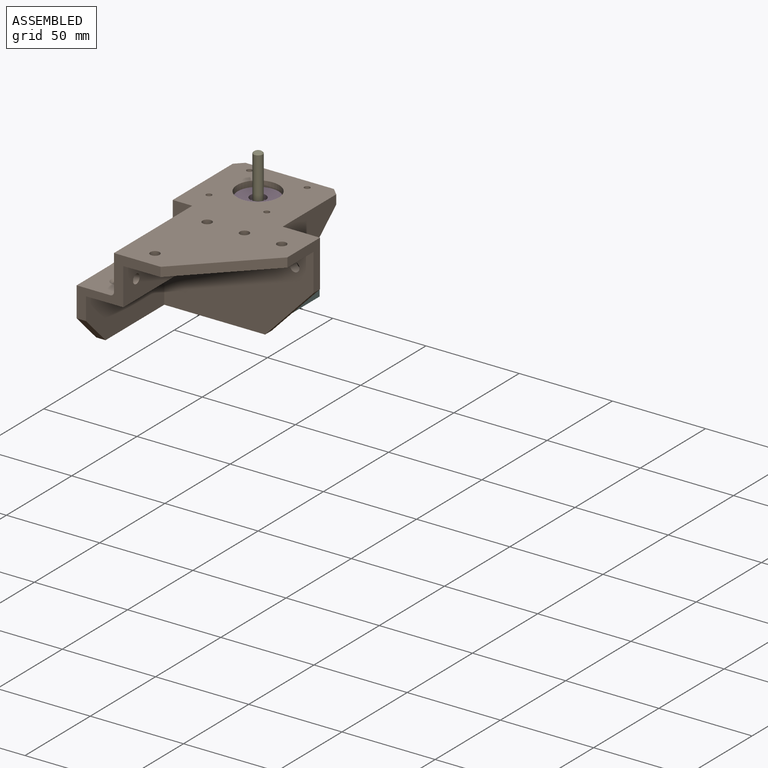
[diagram: assembled view]
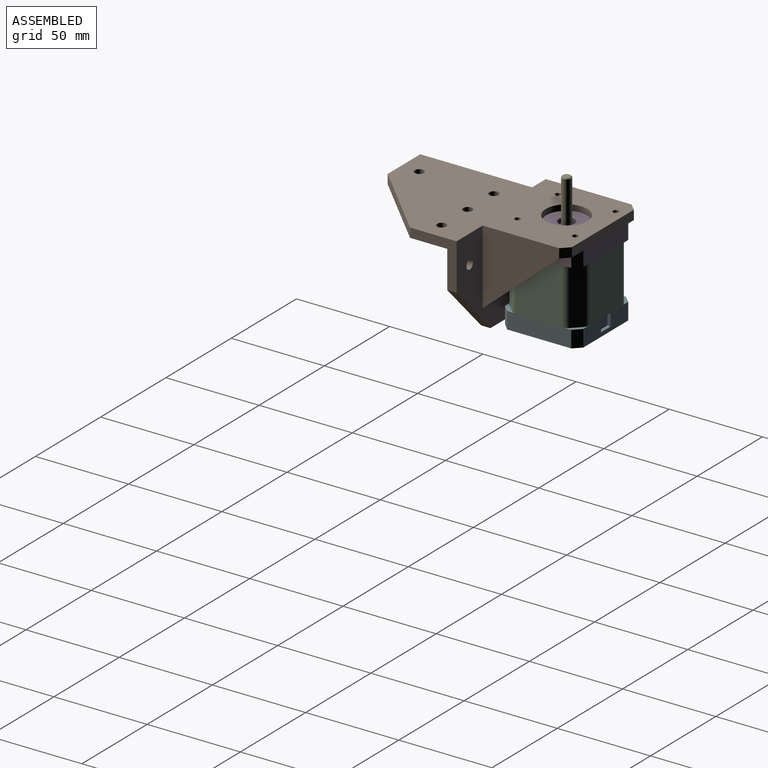
[diagram: assembled view, second angle]
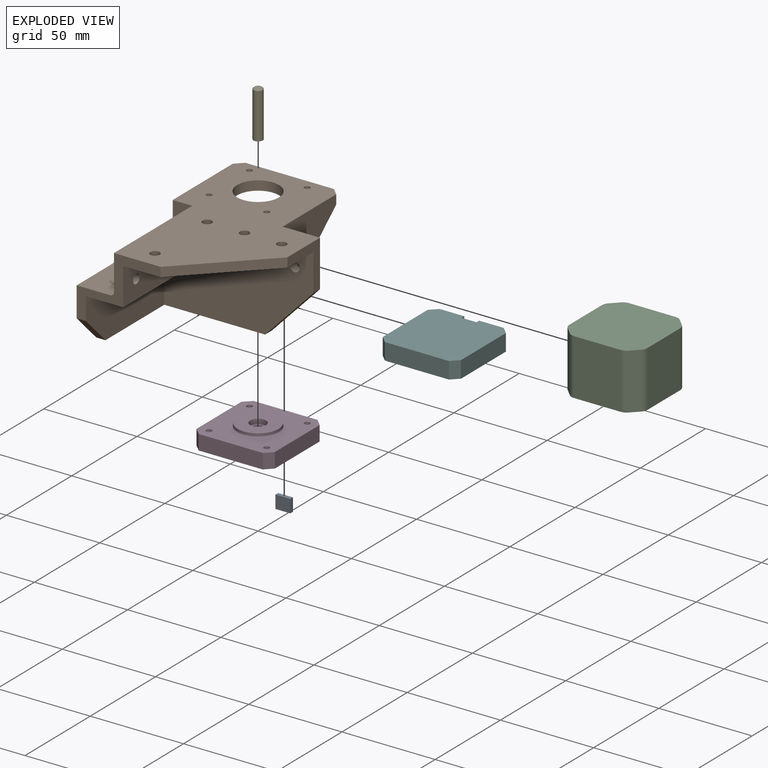
[diagram: exploded view]
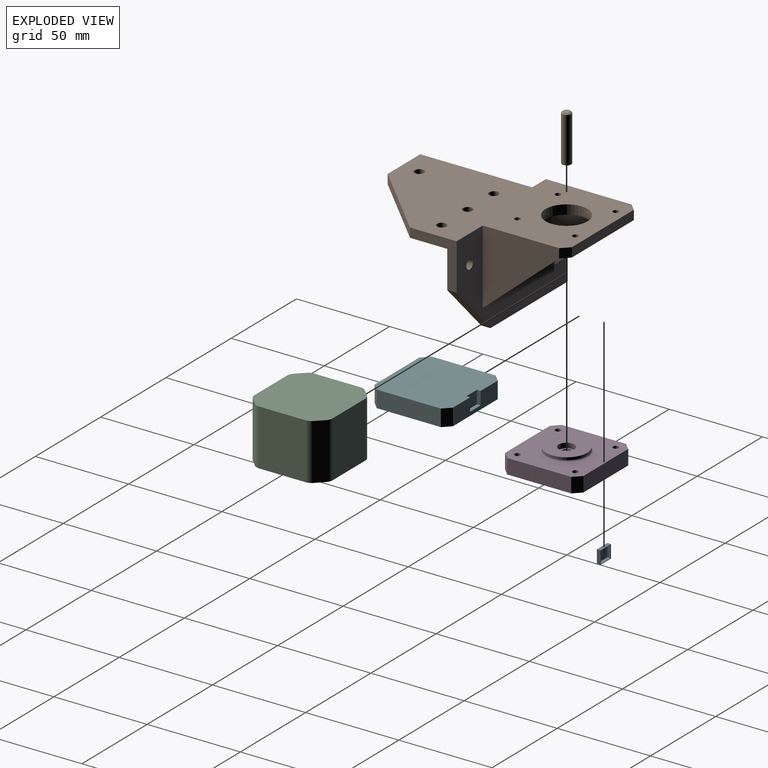
[diagram: exploded view, second angle]
ASSEMBLY  parts=6 mates=6
PART A: 11 faces, bbox 8x2x7 mm
  f0: plane 8x2mm, normal (0,0,-1), area 16mm2, adj f1,f3,f4,f9
  f1: plane 7x2mm, normal (-1,0,0), area 14mm2, adj f0,f2,f4,f9
  f2: plane 8x2mm, normal (0,0,1), area 16mm2, adj f1,f3,f4,f9
  f3: plane 7x2mm, normal (1,0,0), area 14mm2, adj f0,f2,f4,f9
  f4: plane 8x7mm, normal (0,-1,0), area 56mm2, adj f0,f1,f2,f3
  f5: plane 7.5x1.75mm, normal (0,0,-1), area 13.1mm2, adj f6,f8,f9,f10
  f6: plane 6.5x1.75mm, normal (-1,0,0), area 11.4mm2, adj f5,f7,f9,f10
  f7: plane 7.5x1.75mm, normal (0,0,1), area 13.1mm2, adj f6,f8,f9,f10
  f8: plane 6.5x1.75mm, normal (1,0,0), area 11.4mm2, adj f5,f7,f9,f10
  f9: plane 8x7mm, normal (0,1,0), area 7.3mm2, adj f0,f1,f2,f3,f5,f6,f7,f8
  f10: plane 7.5x6.5mm, normal (0,1,0), area 48.7mm2, adj f5,f6,f7,f8
PART B: 56 faces, bbox 110x85x52 mm
  f0: cylinder r=2mm len=27.5mm, axis (1,0,0), area 73.4mm2, adj f6,f39,f49,f50,f54
  f1: cylinder r=2mm len=27.5mm, axis (1,0,0), area 75.7mm2, adj f3,f5,f6,f51,f53
  f2: plane 65x31mm, normal (0,-1,0), area 1902.5mm2, adj f3,f5,f10,f24,f39,f41,f42,f52
  f3: plane 45x37mm, normal (1,0,0), area 365.9mm2, adj f1,f2,f4,f5,f6,f9,f21,f36
  f4: plane 60x27mm, normal (0,1,0), area 1507.5mm2, adj f3,f8,f10,f38,f52
  f5: plane 25.5x18mm, normal (0,0,1), area 414.8mm2, adj f1,f2,f3,f48,f51
  f6: plane 60x20.5mm, normal (0,-1,0), area 1026.3mm2, adj f0,f1,f3,f16,f21,f33,f37,f42
  f7: plane 46x40mm, normal (0,-1,0), area 980mm2, adj f21,f24,f26,f32,f37,f41
  f8: plane 80x47mm, normal (1,0,0), area 2970.8mm2, adj f4,f9,f10,f11,f15,f17,f22,f36
  f9: plane 60x20mm, normal (0,1,0), area 1160.7mm2, adj f3,f8,f16,f33,f36,f38
  f10: plane 59.08x50mm, normal (0,0,-1), area 520.4mm2, adj f2,f4,f8,f11,f24,f52
  f11: plane 27x25.92mm, normal (0,0.72,-0.69), area 187.1mm2, adj f8,f10,f17,f24
  f12: plane 55.5x45mm, normal (0,0,-1), area 1809.6mm2, adj f13,f19,f23,f24,f25,f26,f27,f28
  f13: cylinder r=1.5mm len=5mm, axis (0,0,1), area 47.1mm2, adj f12,f21
  f14: cylinder r=2.5mm len=5mm, axis (0,0,1), area 78.5mm2, adj f21,f36
  f15: cylinder r=2.5mm len=5mm, axis (1,0,0), area 78.5mm2, adj f8,f24
  f16: cylinder r=2.5mm len=5mm, axis (0,1,0), area 78.5mm2, adj f6,f9
  f17: plane 25x25mm, normal (0,1,0), area 225mm2, adj f8,f11,f21,f24,f36,f40
  f18: plane 41x40mm, normal (0,1,0), area 922.5mm2, adj f19,f21,f24,f31
  f19: plane 5x4mm, normal (-0.71,0.71,0), area 28.3mm2, adj f12,f18,f21,f30
  f20: cylinder r=2.5mm len=5mm, axis (0,0,1), area 78.5mm2, adj f21,f36
  f21: plane 110x75.5mm, normal (0,0,1), area 5454.6mm2, adj f3,f6,f7,f13,f14,f17,f18,f19
  f22: cylinder r=2.5mm len=5mm, axis (1,0,0), area 78.5mm2, adj f8,f24
  f23: cylinder r=1.5mm len=5mm, axis (0,0,1), area 47.1mm2, adj f12,f21
  f24: plane 85x52mm, normal (-1,0,0), area 3388.9mm2, adj f2,f7,f10,f11,f12,f15,f17,f18
  f25: plane 41x35mm, normal (0,1,0), area 717.5mm2, adj f12,f24,f32
  f26: plane 5x4mm, normal (-0.71,-0.71,0), area 28.3mm2, adj f7,f12,f21,f30
  f27: cylinder r=11.25mm len=22.5mm, axis (0,0,1), area 353.4mm2, adj f12,f21
  f28: plane 41x35mm, normal (0,-1,0), area 717.5mm2, adj f12,f24,f31
  f29: cylinder r=1.5mm len=5mm, axis (0,0,1), area 47.1mm2, adj f12,f21
  f30: plane 47.5x5mm, normal (-1,0,0), area 237.5mm2, adj f12,f19,f21,f26
  f31: plane 41x35mm, normal (-0.65,0,-0.76), area 161.7mm2, adj f12,f18,f24,f28
  f32: plane 41x35mm, normal (-0.65,0,-0.76), area 161.7mm2, adj f7,f12,f24,f25
  f33: cylinder r=2.5mm len=5mm, axis (0,1,0), area 78.5mm2, adj f6,f9
  f34: cylinder r=2.5mm len=5mm, axis (0,0,1), area 78.5mm2, adj f21,f36
  f35: cylinder r=1.5mm len=5mm, axis (0,0,1), area 47.1mm2, adj f12,f21
  f36: plane 60x60mm, normal (0,0,-1), area 2721.5mm2, adj f3,f8,f9,f14,f17,f20,f34,f40
  f37: plane 19x18mm, normal (1,0,0), area 227.6mm2, adj f6,f7,f21,f41,f50
  f38: plane 60x20mm, normal (0,0,-1), area 1180.8mm2, adj f3,f4,f8,f9,f45,f46
  f39: plane 23.5x18mm, normal (0,0,1), area 378.8mm2, adj f0,f2,f47,f49,f50
  f40: plane 40x40mm, normal (0.71,0.71,0), area 282.8mm2, adj f3,f17,f21,f36
  f41: plane 9.5x9.5mm, normal (0,-0.71,0.71), area 68.4mm2, adj f2,f7,f24,f37,f50
  f42: plane 20x20mm, normal (0,-0.71,0.71), area 143.8mm2, adj f2,f6,f43,f44,f49,f51
  f43: plane 18x18mm, normal (-1,0,0), area 162mm2, adj f6,f42,f49
  f44: plane 18x18mm, normal (1,0,0), area 162mm2, adj f6,f42,f51
  f45: cylinder r=1.75mm len=3.5mm, axis (0,0,1), area 22mm2, adj f38,f47
  f46: cylinder r=1.75mm len=3.5mm, axis (0,0,1), area 22mm2, adj f38,f48
  f47: cone r=1.75mm half-angle=45deg, axis (0,0,1), area 48.9mm2, adj f39,f45
  f48: cone r=1.75mm half-angle=45deg, axis (0,0,1), area 48.9mm2, adj f5,f46
  f49: cylinder r=2mm len=20mm, axis (0,-1,0), area 58.3mm2, adj f0,f39,f42,f43
  f50: cylinder r=2mm len=20mm, axis (0,-1,0), area 58.3mm2, adj f0,f37,f39,f41
  f51: cylinder r=2mm len=20mm, axis (0,1,0), area 58.3mm2, adj f1,f5,f42,f44
  f52: plane 15x15mm, normal (0.71,0,-0.71), area 106.1mm2, adj f2,f3,f4,f10
  f53: cylinder r=5.5mm len=7.55mm, axis (0,1,0), area 2.8mm2, adj f1,f6
  f54: cylinder r=5.5mm len=7.55mm, axis (0,1,0), area 2.8mm2, adj f0,f6
  f55: cylinder r=2.5mm len=5mm, axis (0,0,1), area 78.5mm2, adj f21,f36
PART C: 18 faces, bbox 42x42x30 mm
  f0: cylinder r=4.48mm len=30mm, axis (0,0,1), area 105.5mm2, adj f1,f15,f16,f17
  f1: plane 30x4.02mm, normal (0.71,-0.71,0), area 170.6mm2, adj f0,f2,f16,f17
  f2: cylinder r=4.48mm len=30mm, axis (0,0,1), area 105.5mm2, adj f1,f3,f16,f17
  f3: plane 30x25mm, normal (0,-1,0), area 750mm2, adj f2,f4,f16,f17
  f4: cylinder r=4.48mm len=30mm, axis (0,0,1), area 105.5mm2, adj f3,f5,f16,f17
  f5: plane 30x4.02mm, normal (-0.71,-0.71,0), area 170.6mm2, adj f4,f6,f16,f17
  f6: cylinder r=4.48mm len=30mm, axis (0,0,1), area 105.5mm2, adj f5,f7,f16,f17
  f7: plane 30x25mm, normal (-1,0,0), area 750mm2, adj f6,f8,f16,f17
  f8: cylinder r=4.48mm len=30mm, axis (0,0,1), area 105.5mm2, adj f7,f9,f16,f17
  f9: plane 30x4.02mm, normal (-0.71,0.71,0), area 170.6mm2, adj f8,f10,f16,f17
  f10: cylinder r=4.48mm len=30mm, axis (0,0,1), area 105.5mm2, adj f9,f11,f16,f17
  f11: plane 30x25mm, normal (0,1,0), area 750mm2, adj f10,f12,f16,f17
  f12: cylinder r=4.48mm len=30mm, axis (0,0,1), area 105.5mm2, adj f11,f13,f16,f17
  f13: plane 30x4.02mm, normal (0.71,0.71,0), area 170.6mm2, adj f12,f14,f16,f17
  f14: cylinder r=4.48mm len=30mm, axis (0,0,1), area 105.5mm2, adj f13,f15,f16,f17
  f15: plane 30x25mm, normal (1,0,0), area 750mm2, adj f0,f14,f16,f17
  f16: plane 42x42mm, normal (0,0,-1), area 1672.2mm2, adj f0,f1,f2,f3,f4,f5,f6,f7
  f17: plane 42x42mm, normal (0,0,1), area 1672.2mm2, adj f0,f1,f2,f3,f4,f5,f6,f7
PART D: 27 faces, bbox 42x42x10 mm
  f0: torus R=11.75mm, axis (0,0,-1), area 83.4mm2, adj f4,f18
  f1: cylinder r=2.75mm len=5.5mm, axis (0,0,-1), area 8.6mm2, adj f25,f26
  f2: cylinder r=4mm len=8mm, axis (0,0,-1), area 12.6mm2, adj f24,f25
  f3: cylinder r=4.25mm len=8.5mm, axis (0,0,1), area 80.1mm2, adj f23,f24
  f4: cylinder r=11mm len=22mm, axis (0,0,-1), area 86.4mm2, adj f0,f23
  f5: cylinder r=1.5mm len=4.5mm, axis (0,0,1), area 42.4mm2, adj f18,f22
  f6: cylinder r=1.5mm len=4.5mm, axis (0,0,1), area 42.4mm2, adj f18,f21
  f7: cylinder r=1.5mm len=4.5mm, axis (0,0,1), area 42.4mm2, adj f18,f20
  f8: cylinder r=1.5mm len=4.5mm, axis (0,0,1), area 42.4mm2, adj f18,f19
  f9: plane 8x3.82mm, normal (0.71,0.71,0), area 43.2mm2, adj f10,f16,f17,f18
  f10: plane 34.37x8mm, normal (1,0,0), area 274.9mm2, adj f9,f11,f17,f18
  f11: plane 8x3.82mm, normal (0.71,-0.71,0), area 43.2mm2, adj f10,f12,f17,f18
  f12: plane 34.37x8mm, normal (0,-1,0), area 274.9mm2, adj f11,f13,f17,f18
  f13: plane 8x3.82mm, normal (-0.71,-0.71,0), area 43.2mm2, adj f12,f14,f17,f18
  f14: plane 34.37x8mm, normal (-1,0,0), area 274.9mm2, adj f13,f15,f17,f18
  f15: plane 8x3.82mm, normal (-0.71,0.71,0), area 43.2mm2, adj f14,f16,f17,f18
  f16: plane 34.37x8mm, normal (0,1,0), area 274.9mm2, adj f9,f15,f17,f18
  f17: plane 42x42mm, normal (0,0,-1), area 1734.9mm2, adj f9,f10,f11,f12,f13,f14,f15,f16
  f18: plane 42x42mm, normal (0,0,1), area 1272.9mm2, adj f0,f5,f6,f7,f8,f9,f10,f11
  f19: plane 3x3mm, normal (0,0,1), area 7.1mm2, adj f8
  f20: plane 3x3mm, normal (0,0,1), area 7.1mm2, adj f7
  f21: plane 3x3mm, normal (0,0,1), area 7.1mm2, adj f6
  f22: plane 3x3mm, normal (0,0,1), area 7.1mm2, adj f5
  f23: plane 22x22mm, normal (0,0,1), area 323.4mm2, adj f3,f4
  f24: plane 8.5x8.5mm, normal (0,0,1), area 6.5mm2, adj f2,f3
  f25: plane 8x8mm, normal (0,0,1), area 26.5mm2, adj f1,f2
  f26: plane 5.5x5.5mm, normal (0,0,1), area 23.8mm2, adj f1
PART E: 4 faces, bbox 5x5x25 mm
  f0: cone r=1.93mm half-angle=45deg, axis (0,0,-1), area 11.3mm2, adj f1,f3
  f1: cylinder r=2.5mm len=24.43mm, axis (0,0,-1), area 383.7mm2, adj f0,f2
  f2: plane 5x5mm, normal (0,0,-1), area 19.6mm2, adj f1
  f3: plane 3.85x3.85mm, normal (0,0,1), area 11.6mm2, adj f0
PART F: 14 faces, bbox 42x42x9 mm
  f0: plane 34.37x9mm, normal (0,1,0), area 253.3mm2, adj f1,f7,f8,f9,f10,f11,f12
  f1: plane 9x3.82mm, normal (0.71,0.71,0), area 48.6mm2, adj f0,f2,f8,f9
  f2: plane 34.37x9mm, normal (1,0,0), area 309.3mm2, adj f1,f3,f8,f9
  f3: plane 9x3.82mm, normal (0.71,-0.71,0), area 48.6mm2, adj f2,f4,f8,f9
  f4: plane 34.37x9mm, normal (0,-1,0), area 309.3mm2, adj f3,f5,f8,f9
  f5: plane 9x3.82mm, normal (-0.71,-0.71,0), area 48.6mm2, adj f4,f6,f8,f9
  f6: plane 34.37x9mm, normal (-1,0,0), area 309.3mm2, adj f5,f7,f8,f9
  f7: plane 9x3.82mm, normal (-0.71,0.71,0), area 48.6mm2, adj f0,f6,f8,f9
  f8: plane 42x42mm, normal (0,0,-1), area 1734.9mm2, adj f0,f1,f2,f3,f4,f5,f6,f7
  f9: plane 42x42mm, normal (0,0,1), area 1718.9mm2, adj f0,f1,f2,f3,f4,f5,f6,f7
  f10: plane 7x2mm, normal (1,0,0), area 14mm2, adj f0,f9,f11,f13
  f11: plane 8x2mm, normal (0,0,1), area 16mm2, adj f0,f10,f12,f13
  f12: plane 7x2mm, normal (-1,0,0), area 14mm2, adj f0,f9,f11,f13
  f13: plane 8x7mm, normal (0,1,0), area 56mm2, adj f9,f10,f11,f12
PLACE A at identity
PLACE B rot(axis=(0,0,-1),90deg) t=(0,-39,0)mm
PLACE C at identity
PLACE D at identity fixed
PLACE E t=(0,0,0.07)mm
PLACE F at identity
MATE fastened A.f0 <-> F.f11  axis (0,0,1) through (4,21,-45)mm
MATE revolute E.f0 <-> D.f0  axis (0,0,1) through (0,0,23.5)mm
MATE revolute B.f29 <-> D.f6  axis (0,0,-1) through (15.5,-15.5,0)mm
MATE fastened D.f14 <-> C.f7  axis (-1,0,0) through (-21,0,-8)mm
MATE revolute B.f35 <-> D.f8  axis (0,0,-1) through (-15.5,15.5,0)mm
MATE fastened C.f7 <-> F.f6  axis (-1,0,0) through (-21,0,-38)mm
